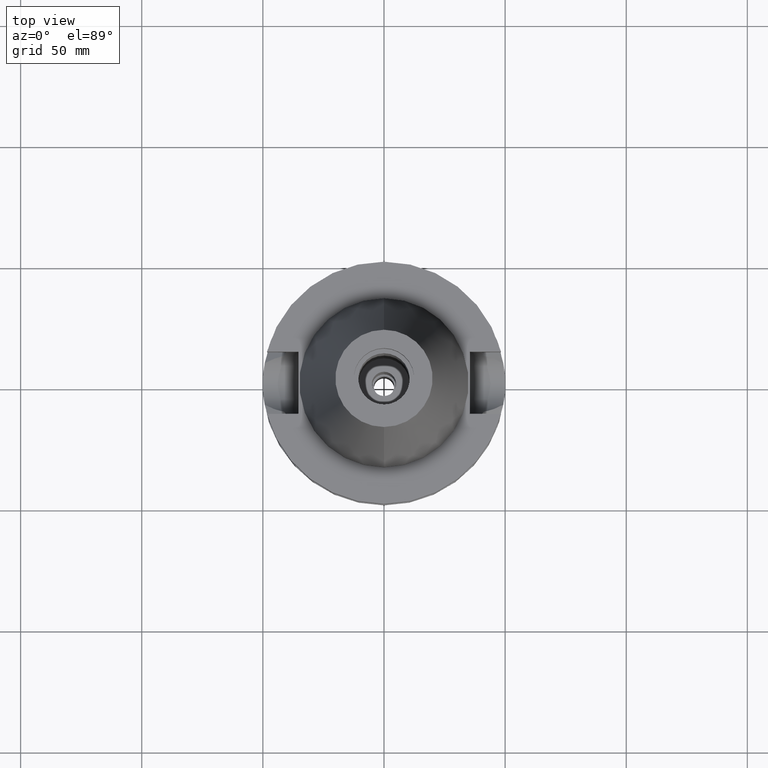
[diagram: clean part render]
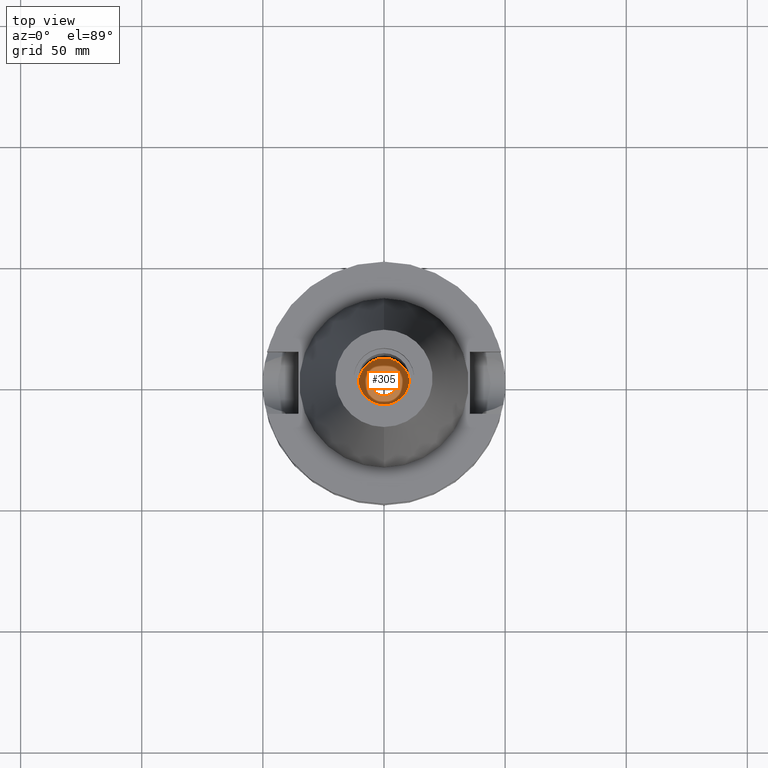
[diagram: same view with one face highlighted and labeled with its STEP entity id]
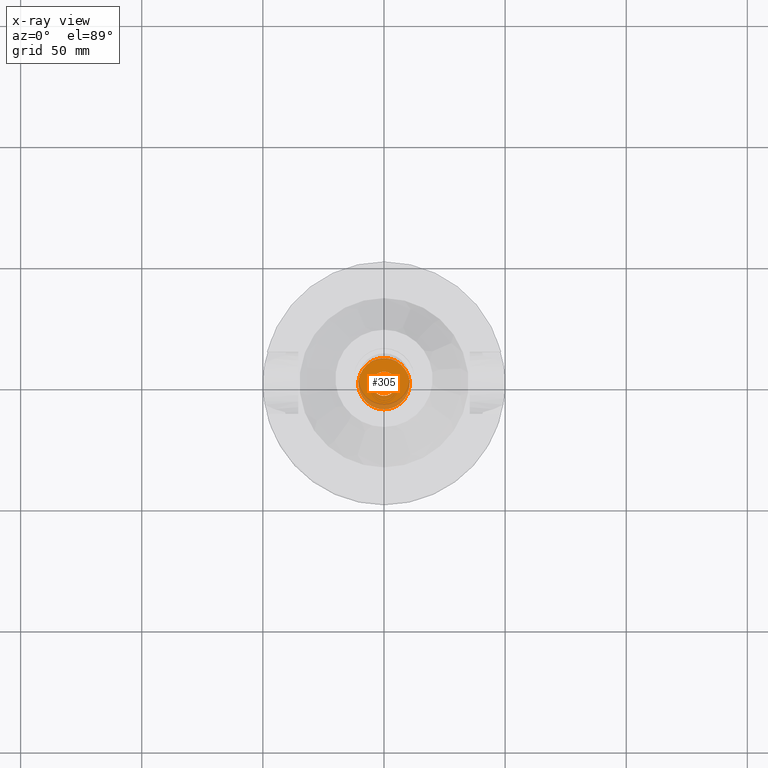
[diagram: x-ray of the same camera — body ghosted, the highlighted face saturated]
A machine part, top view. The second image highlights one B-rep face of the part: STEP entity #305.
The next image is the same camera in x-ray: the body ghosted, the highlighted face saturated — about 16% of this face is hidden behind the body in this view.
In plain terms, the highlighted planar face has unit normal (0, 0, -1).
Its self-contained STEP definition (entity closure, byte-faithful):
#86 = ORIENTED_EDGE ( 'NONE', *, *, #1515, .F. ) ;
#176 = AXIS2_PLACEMENT_3D ( 'NONE', #1553, #528, #2194 ) ;
#298 = PLANE ( 'NONE',  #2787 ) ;
#305 = ADVANCED_FACE ( 'NONE', ( #1740, #1382 ), #298, .F. ) ;
#317 = EDGE_LOOP ( 'NONE', ( #86, #3649 ) ) ;
#494 = VERTEX_POINT ( 'NONE', #1258 ) ;
#528 = DIRECTION ( 'NONE',  ( 0.0000000000000000000, 0.0000000000000000000, 1.000000000000000000 ) ) ;
#565 = ORIENTED_EDGE ( 'NONE', *, *, #1617, .F. ) ;
#650 = DIRECTION ( 'NONE',  ( 0.0000000000000000000, 1.000000000000000000, 0.0000000000000000000 ) ) ;
#681 = VERTEX_POINT ( 'NONE', #1655 ) ;
#835 = CARTESIAN_POINT ( 'NONE',  ( 0.0000000000000000000, 2.631031183287999807E-14, -28.19999999999999929 ) ) ;
#1149 = EDGE_CURVE ( 'NONE', #494, #681, #1704, .T. ) ;
#1187 = ORIENTED_EDGE ( 'NONE', *, *, #1149, .F. ) ;
#1258 = CARTESIAN_POINT ( 'NONE',  ( 0.0000000000000000000, -10.59999999999999964, -28.19999999999999929 ) ) ;
#1382 = FACE_BOUND ( 'NONE', #317, .T. ) ;
#1408 = DIRECTION ( 'NONE',  ( 0.0000000000000000000, -1.000000000000000000, 0.0000000000000000000 ) ) ;
#1426 = DIRECTION ( 'NONE',  ( 0.0000000000000000000, 0.0000000000000000000, -1.000000000000000000 ) ) ;
#1485 = CARTESIAN_POINT ( 'NONE',  ( 0.0000000000000000000, 2.631031183287999807E-14, -28.19999999999999929 ) ) ;
#1515 = EDGE_CURVE ( 'NONE', #2942, #3643, #3369, .T. ) ;
#1553 = CARTESIAN_POINT ( 'NONE',  ( 0.0000000000000000000, 2.631031183287999807E-14, -28.19999999999999929 ) ) ;
#1556 = EDGE_LOOP ( 'NONE', ( #565, #1187 ) ) ;
#1617 = EDGE_CURVE ( 'NONE', #681, #494, #3264, .T. ) ;
#1634 = DIRECTION ( 'NONE',  ( 0.0000000000000000000, -1.000000000000000000, 0.0000000000000000000 ) ) ;
#1655 = CARTESIAN_POINT ( 'NONE',  ( 0.0000000000000000000, 10.59999999999999964, -28.19999999999999929 ) ) ;
#1658 = CIRCLE ( 'NONE', #176, 5.000000000000000000 ) ;
#1704 = CIRCLE ( 'NONE', #3017, 10.59999999999999964 ) ;
#1709 = CARTESIAN_POINT ( 'NONE',  ( 0.0000000000000000000, 0.0000000000000000000, -28.19999999999999929 ) ) ;
#1740 = FACE_OUTER_BOUND ( 'NONE', #1556, .T. ) ;
#1961 = DIRECTION ( 'NONE',  ( 0.0000000000000000000, 1.000000000000000000, 0.0000000000000000000 ) ) ;
#2091 = DIRECTION ( 'NONE',  ( 0.0000000000000000000, 0.0000000000000000000, -1.000000000000000000 ) ) ;
#2093 = CARTESIAN_POINT ( 'NONE',  ( 0.0000000000000000000, 5.000000000000000000, -28.19999999999999929 ) ) ;
#2108 = EDGE_CURVE ( 'NONE', #3643, #2942, #1658, .T. ) ;
#2194 = DIRECTION ( 'NONE',  ( 0.0000000000000000000, -1.000000000000000000, 0.0000000000000000000 ) ) ;
#2232 = DIRECTION ( 'NONE',  ( 0.0000000000000000000, 0.0000000000000000000, -1.000000000000000000 ) ) ;
#2787 = AXIS2_PLACEMENT_3D ( 'NONE', #1709, #1426, #1408 ) ;
#2942 = VERTEX_POINT ( 'NONE', #2093 ) ;
#3017 = AXIS2_PLACEMENT_3D ( 'NONE', #3075, #2232, #1634 ) ;
#3075 = CARTESIAN_POINT ( 'NONE',  ( 0.0000000000000000000, 2.631031183287999807E-14, -28.19999999999999929 ) ) ;
#3086 = CARTESIAN_POINT ( 'NONE',  ( 0.0000000000000000000, -5.000000000000000000, -28.19999999999999929 ) ) ;
#3258 = AXIS2_PLACEMENT_3D ( 'NONE', #1485, #2091, #650 ) ;
#3264 = CIRCLE ( 'NONE', #3258, 10.59999999999999964 ) ;
#3369 = CIRCLE ( 'NONE', #3433, 5.000000000000000000 ) ;
#3385 = DIRECTION ( 'NONE',  ( 0.0000000000000000000, 0.0000000000000000000, 1.000000000000000000 ) ) ;
#3433 = AXIS2_PLACEMENT_3D ( 'NONE', #835, #3385, #1961 ) ;
#3643 = VERTEX_POINT ( 'NONE', #3086 ) ;
#3649 = ORIENTED_EDGE ( 'NONE', *, *, #2108, .F. ) ;